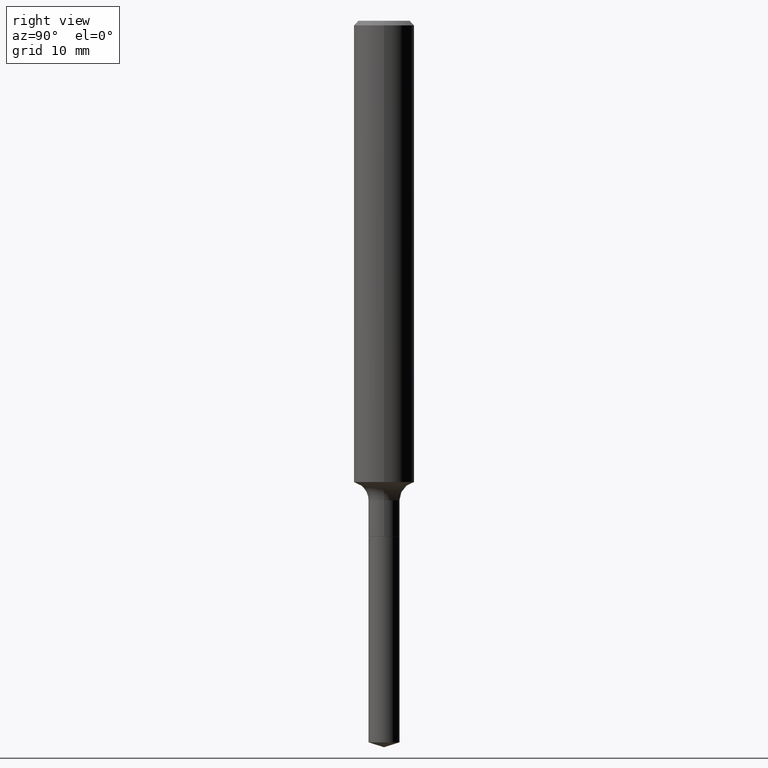
[diagram: clean part render]
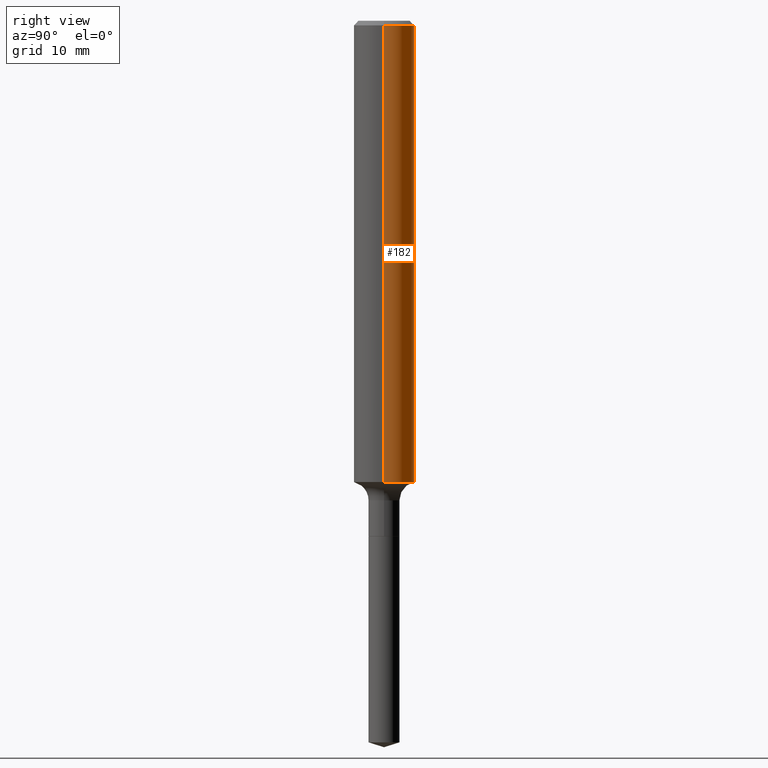
[diagram: same view with one face highlighted and labeled with its STEP entity id]
A machine part, right view. The second image highlights one B-rep face of the part: STEP entity #182.
In plain terms, the highlighted cylindrical surface (edge-blend (fillet) strip) has radius 3.175 mm, axis along (-0, 0, 1).
Its self-contained STEP definition (entity closure, byte-faithful):
#9 = VERTEX_POINT ( 'NONE', #422 ) ;
#28 = CARTESIAN_POINT ( 'NONE',  ( 0.1250000000000000000, -9.383356098140928781E-16, -0.01875000000000014155 ) ) ;
#46 = ORIENTED_EDGE ( 'NONE', *, *, #257, .T. ) ;
#50 = CIRCLE ( 'NONE', #467, 0.1250000000000002498 ) ;
#55 = FACE_OUTER_BOUND ( 'NONE', #347, .T. ) ;
#62 = LINE ( 'NONE', #109, #429 ) ;
#64 = VECTOR ( 'NONE', #400, 39.37007874015748143 ) ;
#65 = CARTESIAN_POINT ( 'NONE',  ( 4.657716586061579389E-29, -6.649984862093984679E-15, -1.904631363230303576 ) ) ;
#68 = ORIENTED_EDGE ( 'NONE', *, *, #210, .F. ) ;
#72 = AXIS2_PLACEMENT_3D ( 'NONE', #472, #480, #132 ) ;
#86 = VERTEX_POINT ( 'NONE', #251 ) ;
#89 = VERTEX_POINT ( 'NONE', #125 ) ;
#93 = DIRECTION ( 'NONE',  ( -2.445468806185136597E-29, 3.491481338843145583E-15, 1.000000000000000000 ) ) ;
#109 = CARTESIAN_POINT ( 'NONE',  ( 0.1250000000000001110, -8.728703347107842263E-16, 6.095220969744926047E-30 ) ) ;
#111 = DIRECTION ( 'NONE',  ( 1.000000000000000000, -6.982962677686264344E-15, 0.000000000000000000 ) ) ;
#125 = CARTESIAN_POINT ( 'NONE',  ( 0.1250000000000003331, -7.522855196804770385E-15, -1.904631363230303576 ) ) ;
#132 = DIRECTION ( 'NONE',  ( 1.000000000000000000, -6.982962677686266711E-15, 0.000000000000000000 ) ) ;
#157 = AXIS2_PLACEMENT_3D ( 'NONE', #213, #93, #162 ) ;
#162 = DIRECTION ( 'NONE',  ( 1.000000000000000000, -6.982962677686267499E-15, 4.876176775795936353E-29 ) ) ;
#182 = ADVANCED_FACE ( 'NONE', ( #55 ), #370, .T. ) ;
#196 = ORIENTED_EDGE ( 'NONE', *, *, #264, .F. ) ;
#210 = EDGE_CURVE ( 'NONE', #379, #9, #358, .T. ) ;
#211 = EDGE_CURVE ( 'NONE', #86, #9, #321, .T. ) ;
#213 = CARTESIAN_POINT ( 'NONE',  ( 0.000000000000000000, 0.000000000000000000, 0.000000000000000000 ) ) ;
#251 = CARTESIAN_POINT ( 'NONE',  ( -0.1250000000000003331, -5.761806442393857869E-15, -1.904631363230303576 ) ) ;
#257 = EDGE_CURVE ( 'NONE', #89, #86, #50, .T. ) ;
#264 = EDGE_CURVE ( 'NONE', #89, #379, #62, .T. ) ;
#294 = CARTESIAN_POINT ( 'NONE',  ( -0.1250000000000001110, 8.881784197001260212E-16, -6.148668862818637832E-30 ) ) ;
#321 = LINE ( 'NONE', #294, #64 ) ;
#347 = EDGE_LOOP ( 'NONE', ( #46, #482, #68, #196 ) ) ;
#358 = CIRCLE ( 'NONE', #72, 0.1250000000000000000 ) ;
#370 = CYLINDRICAL_SURFACE ( 'NONE', #157, 0.1250000000000001110 ) ;
#373 = DIRECTION ( 'NONE',  ( -2.445468806185136877E-29, 3.491481338843145188E-15, 1.000000000000000000 ) ) ;
#379 = VERTEX_POINT ( 'NONE', #28 ) ;
#400 = DIRECTION ( 'NONE',  ( -2.445468806185136877E-29, 3.491481338843145188E-15, 1.000000000000000000 ) ) ;
#422 = CARTESIAN_POINT ( 'NONE',  ( -0.1250000000000000000, -2.469546648898519313E-15, -0.01875000000000014155 ) ) ;
#429 = VECTOR ( 'NONE', #373, 39.37007874015748143 ) ;
#454 = DIRECTION ( 'NONE',  ( -2.445468806185136597E-29, 3.491481338843145583E-15, 1.000000000000000000 ) ) ;
#467 = AXIS2_PLACEMENT_3D ( 'NONE', #65, #454, #111 ) ;
#472 = CARTESIAN_POINT ( 'NONE',  ( 4.585254011597165626E-31, -6.546527510330947764E-17, -0.01875000000000014155 ) ) ;
#480 = DIRECTION ( 'NONE',  ( -2.445468806185136597E-29, 3.491481338843145583E-15, 1.000000000000000000 ) ) ;
#482 = ORIENTED_EDGE ( 'NONE', *, *, #211, .T. ) ;